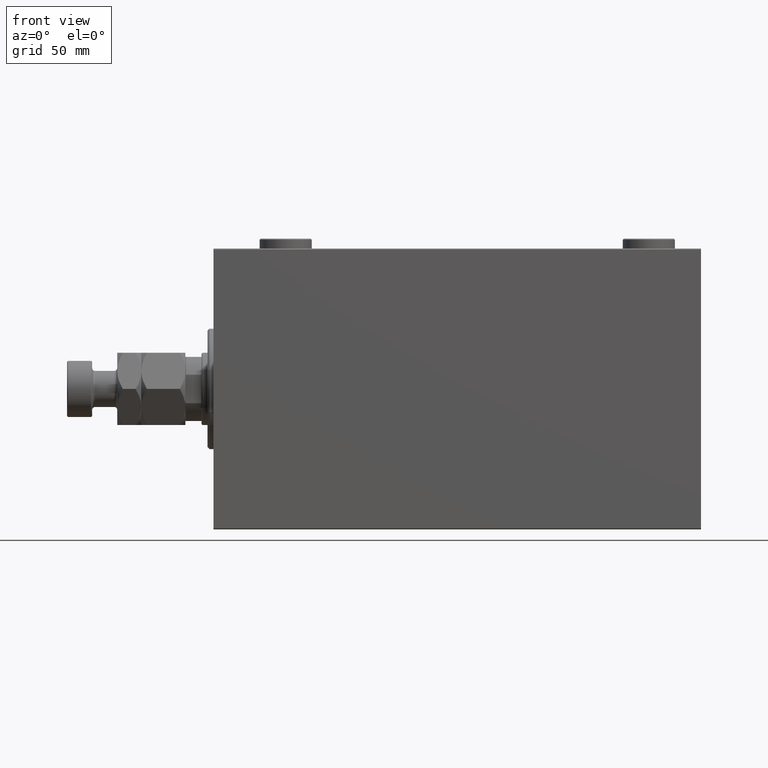
[diagram: clean part render]
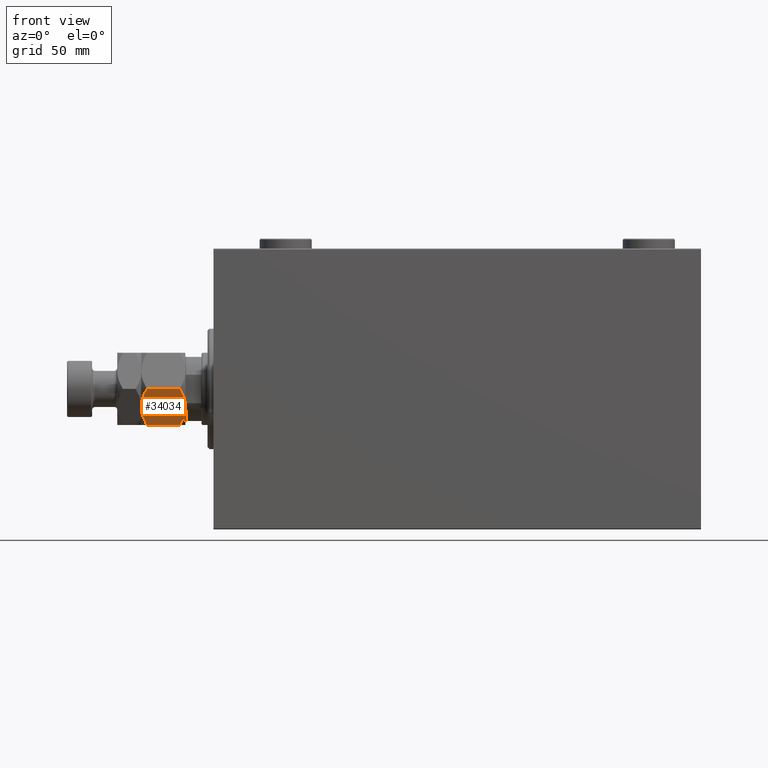
[diagram: same view with one face highlighted and labeled with its STEP entity id]
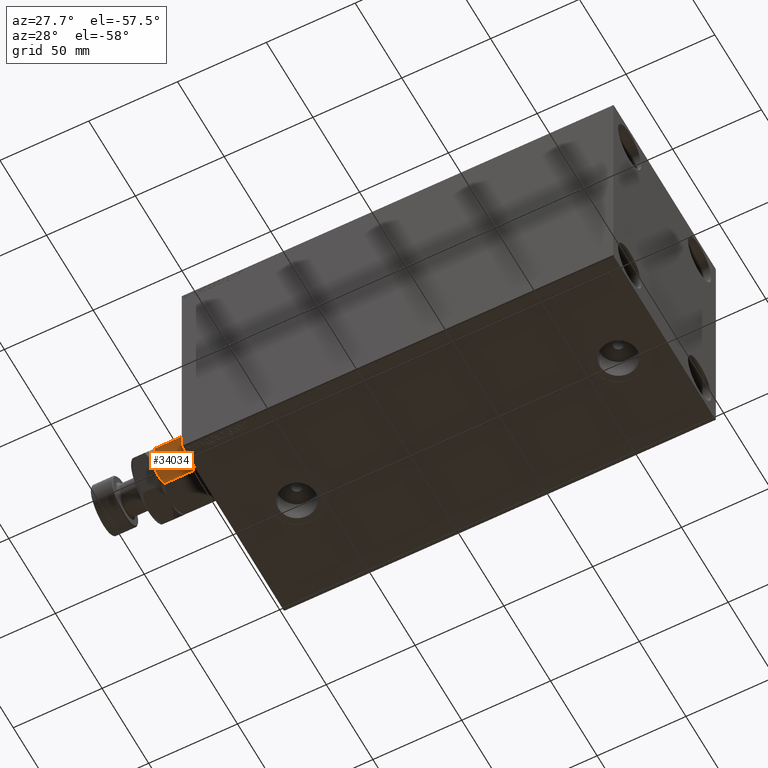
[diagram: same view with one face highlighted and labeled with its STEP entity id]
A machine part, front view. The second image highlights one B-rep face of the part: STEP entity #34034.
A second angle (auxiliary view) of the same face is appended — the face is thin or edge-on in the first view.
In plain terms, the highlighted planar face has unit normal (0, 0.866, 0.5).
Its self-contained STEP definition (entity closure, byte-faithful):
#729 = LINE ( 'NONE', #36893, #17093 ) ;
#812 = EDGE_CURVE ( 'NONE', #38441, #15762, #45948, .T. ) ;
#1345 = DIRECTION ( 'NONE',  ( -0.000000000000000000, -0.000000000000000000, -1.000000000000000000 ) ) ;
#3500 = CARTESIAN_POINT ( 'NONE',  ( -1.409696000463988463, -19.97072132548310108, 20.02927867451694510 ) ) ;
#3995 = VERTEX_POINT ( 'NONE', #35468 ) ;
#4094 = CARTESIAN_POINT ( 'NONE',  ( -10.56546083169953576, -14.68463803553235181, 8.233160247311796338E-16 ) ) ;
#4334 = CARTESIAN_POINT ( 'NONE',  ( -18.00000000000000000, -10.39230484541326582, 2.784609690826517436 ) ) ;
#4618 = CARTESIAN_POINT ( 'NONE',  ( -1.411330396252045816, -19.96977770663490759, 1.969777706634897152 ) ) ;
#5056 = CARTESIAN_POINT ( 'NONE',  ( -10.58425150785354241, -14.67378923359658316, 21.91305310988184374 ) ) ;
#5252 = B_SPLINE_CURVE_WITH_KNOTS ( 'NONE', 3,
 ( #30302, #44793, #12207, #8630, #23156, #37650, #5056, #21479, #35742, #17454 ),
 .UNSPECIFIED., .F., .F.,
 ( 4, 2, 2, 2, 4 ),
 ( 2.544307986796311447E-07, 0.005386537354063076002, 0.008079678815695275074, 0.009426249546511373742, 0.01077282027732747068 ),
 .UNSPECIFIED. ) ;
#7055 = B_SPLINE_CURVE_WITH_KNOTS ( 'NONE', 3,
 ( #21970, #4094, #32894, #7210, #21733, #4334 ),
 .UNSPECIFIED., .F., .F.,
 ( 4, 2, 4 ),
 ( 0.01077282027732746374, 0.01612137750481872772, 0.02146993473230999344 ),
 .UNSPECIFIED. ) ;
#7070 = CARTESIAN_POINT ( 'NONE',  ( -2.860715810337963294, -19.13297464765287614, 20.72742529849575277 ) ) ;
#7210 = CARTESIAN_POINT ( 'NONE',  ( -15.13928418966203004, -12.04393988858690712, 1.272574701504241901 ) ) ;
#8630 = CARTESIAN_POINT ( 'NONE',  ( -12.90267270303527525, -13.33524813246347129, 21.46291444417098049 ) ) ;
#9772 = EDGE_CURVE ( 'NONE', #3995, #21581, #5252, .T. ) ;
#10598 = AXIS2_PLACEMENT_3D ( 'NONE', #12670, #31702, #13633 ) ;
#12026 = EDGE_CURVE ( 'NONE', #41309, #38441, #15164, .T. ) ;
#12207 = CARTESIAN_POINT ( 'NONE',  ( -15.14539811114618573, -12.04041001437222569, 20.72261692211012729 ) ) ;
#12670 = CARTESIAN_POINT ( 'NONE',  ( -18.00000000000000000, -10.39230484541326582, 22.00000000000000000 ) ) ;
#12825 = ORIENTED_EDGE ( 'NONE', *, *, #22763, .F. ) ;
#12872 = ORIENTED_EDGE ( 'NONE', *, *, #9772, .F. ) ;
#13633 = DIRECTION ( 'NONE',  ( -0.8660254037844387076, 0.4999999999999998335, 0.000000000000000000 ) ) ;
#14646 = CARTESIAN_POINT ( 'NONE',  ( -5.858009779716799592, -17.40248616759157230, 0.3405631022552689235 ) ) ;
#14896 = CARTESIAN_POINT ( 'NONE',  ( -18.00000000000000000, -10.39230484541326582, 2.784609690826517436 ) ) ;
#15152 = CARTESIAN_POINT ( 'NONE',  ( -8.999999999999994671, -15.58845726811989252, 22.00000000000000000 ) ) ;
#15164 = LINE ( 'NONE', #33464, #38683 ) ;
#15762 = VERTEX_POINT ( 'NONE', #27292 ) ;
#16875 = EDGE_CURVE ( 'NONE', #3995, #30098, #729, .T. ) ;
#17093 = VECTOR ( 'NONE', #25976, 1000.000000000000000 ) ;
#17454 = CARTESIAN_POINT ( 'NONE',  ( -8.999999999999994671, -15.58845726811989252, 22.00000000000000000 ) ) ;
#18039 = CARTESIAN_POINT ( 'NONE',  ( -6.333703707815436362E-16, -20.78460969082652454, 19.21539030917348256 ) ) ;
#18931 = CARTESIAN_POINT ( 'NONE',  ( -8.209538469370123437, -16.04483044561309768, 0.01733285647409000055 ) ) ;
#19170 = CARTESIAN_POINT ( 'NONE',  ( -7.023280245922045140, -16.72971695024925509, 0.1387225990985768986 ) ) ;
#21479 = CARTESIAN_POINT ( 'NONE',  ( -9.790461530629873010, -15.13208409062669624, 21.98266714352591222 ) ) ;
#21581 = VERTEX_POINT ( 'NONE', #32547 ) ;
#21733 = CARTESIAN_POINT ( 'NONE',  ( -16.59030399953601176, -11.20619321075668928, 1.970721325483051567 ) ) ;
#21970 = CARTESIAN_POINT ( 'NONE',  ( -8.999999999999996447, -15.58845726811989607, 0.000000000000000000 ) ) ;
#22717 = CARTESIAN_POINT ( 'NONE',  ( -5.097327296964719423, -17.84166640377631197, 0.5370855558290080767 ) ) ;
#22763 = EDGE_CURVE ( 'NONE', #15762, #30098, #7055, .T. ) ;
#23156 = CARTESIAN_POINT ( 'NONE',  ( -12.14199022028319774, -13.77442836864821984, 21.65943689774472602 ) ) ;
#24583 = FACE_OUTER_BOUND ( 'NONE', #40030, .T. ) ;
#25302 = ORIENTED_EDGE ( 'NONE', *, *, #12026, .F. ) ;
#25825 = CARTESIAN_POINT ( 'NONE',  ( -7.415748492146452264, -16.50312530264320898, 0.08694689011815484592 ) ) ;
#25976 = DIRECTION ( 'NONE',  ( -0.000000000000000000, -0.000000000000000000, -1.000000000000000000 ) ) ;
#26226 = ORIENTED_EDGE ( 'NONE', *, *, #16875, .T. ) ;
#27292 = CARTESIAN_POINT ( 'NONE',  ( -8.999999999999996447, -15.58845726811989607, 0.000000000000000000 ) ) ;
#27947 = ORIENTED_EDGE ( 'NONE', *, *, #812, .F. ) ;
#29226 = ORIENTED_EDGE ( 'NONE', *, *, #45525, .F. ) ;
#29857 = CARTESIAN_POINT ( 'NONE',  ( -5.711424626294094742E-16, -20.78460969082652454, 2.784609690826514772 ) ) ;
#30098 = VERTEX_POINT ( 'NONE', #14896 ) ;
#30302 = CARTESIAN_POINT ( 'NONE',  ( -18.00000000000000000, -10.39230484541326582, 19.21539030917347901 ) ) ;
#31702 = DIRECTION ( 'NONE',  ( 0.4999999999999998335, 0.8660254037844387076, -0.000000000000000000 ) ) ;
#32547 = CARTESIAN_POINT ( 'NONE',  ( -8.999999999999994671, -15.58845726811989252, 22.00000000000000000 ) ) ;
#32717 = CARTESIAN_POINT ( 'NONE',  ( -2.854601888853810721, -19.13650452186755757, 1.277383077889868046 ) ) ;
#32894 = CARTESIAN_POINT ( 'NONE',  ( -12.10430252359947723, -13.79618737047370303, 0.2763959071215840724 ) ) ;
#33464 = CARTESIAN_POINT ( 'NONE',  ( -8.673617379884035472E-16, -20.78460969082652454, 22.00000000000000000 ) ) ;
#34034 = ADVANCED_FACE ( 'NONE', ( #24583 ), #35264, .F. ) ;
#35264 = PLANE ( 'NONE',  #10598 ) ;
#35468 = CARTESIAN_POINT ( 'NONE',  ( -18.00000000000000000, -10.39230484541326582, 19.21539030917347901 ) ) ;
#35742 = CARTESIAN_POINT ( 'NONE',  ( -9.394125676616230436, -15.36090870263097230, 22.00000000000000000 ) ) ;
#36893 = CARTESIAN_POINT ( 'NONE',  ( -18.00000000000000000, -10.39230484541326582, 22.00000000000000000 ) ) ;
#37650 = CARTESIAN_POINT ( 'NONE',  ( -10.97671975407795131, -14.44719758599054060, 21.86127740090141458 ) ) ;
#38441 = VERTEX_POINT ( 'NONE', #42386 ) ;
#38683 = VECTOR ( 'NONE', #1345, 1000.000000000000000 ) ;
#38825 = B_SPLINE_CURVE_WITH_KNOTS ( 'NONE', 3,
 ( #15152, #39664, #47022, #7070, #3500, #18039 ),
 .UNSPECIFIED., .F., .F.,
 ( 4, 2, 4 ),
 ( 0.01077282027732747068, 0.01612137750481873466, 0.02146993473230999691 ),
 .UNSPECIFIED. ) ;
#39664 = CARTESIAN_POINT ( 'NONE',  ( -7.434539168300457135, -16.49227650070744033, 22.00000000000000000 ) ) ;
#40030 = EDGE_LOOP ( 'NONE', ( #27947, #25302, #29226, #12872, #26226, #12825 ) ) ;
#40076 = CARTESIAN_POINT ( 'NONE',  ( -8.605874323383764235, -15.81600583360881807, 9.080193194566099635E-16 ) ) ;
#40308 = CARTESIAN_POINT ( 'NONE',  ( -8.999999999999996447, -15.58845726811989607, 0.000000000000000000 ) ) ;
#41309 = VERTEX_POINT ( 'NONE', #41720 ) ;
#41720 = CARTESIAN_POINT ( 'NONE',  ( -6.333703707815436362E-16, -20.78460969082652454, 19.21539030917348256 ) ) ;
#42386 = CARTESIAN_POINT ( 'NONE',  ( -5.711424626294094742E-16, -20.78460969082652454, 2.784609690826514772 ) ) ;
#44793 = CARTESIAN_POINT ( 'NONE',  ( -16.58866960374795241, -11.20713682960488633, 20.03022229336509596 ) ) ;
#45525 = EDGE_CURVE ( 'NONE', #21581, #41309, #38825, .T. ) ;
#45948 = B_SPLINE_CURVE_WITH_KNOTS ( 'NONE', 3,
 ( #29857, #4618, #32717, #22717, #14646, #19170, #25825, #18931, #40076, #40308 ),
 .UNSPECIFIED., .F., .F.,
 ( 4, 2, 2, 2, 4 ),
 ( 2.544307986815391393E-07, 0.005386537354063073400, 0.008079678815695269870, 0.009426249546511366803, 0.01077282027732746374 ),
 .UNSPECIFIED. ) ;
#47022 = CARTESIAN_POINT ( 'NONE',  ( -5.895697476400521886, -17.38072716576608912, 21.72360409287842131 ) ) ;